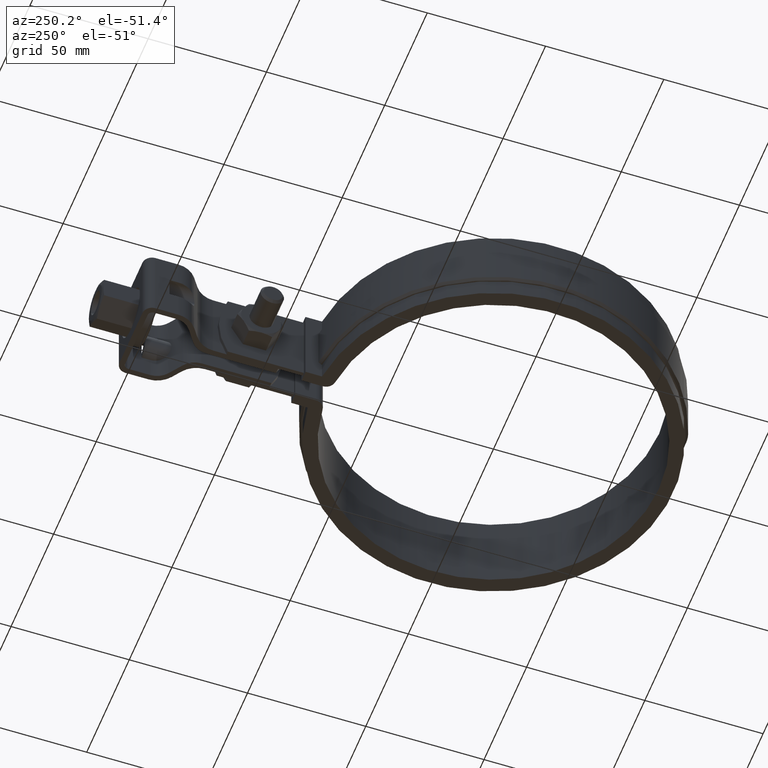
[diagram: clean part render]
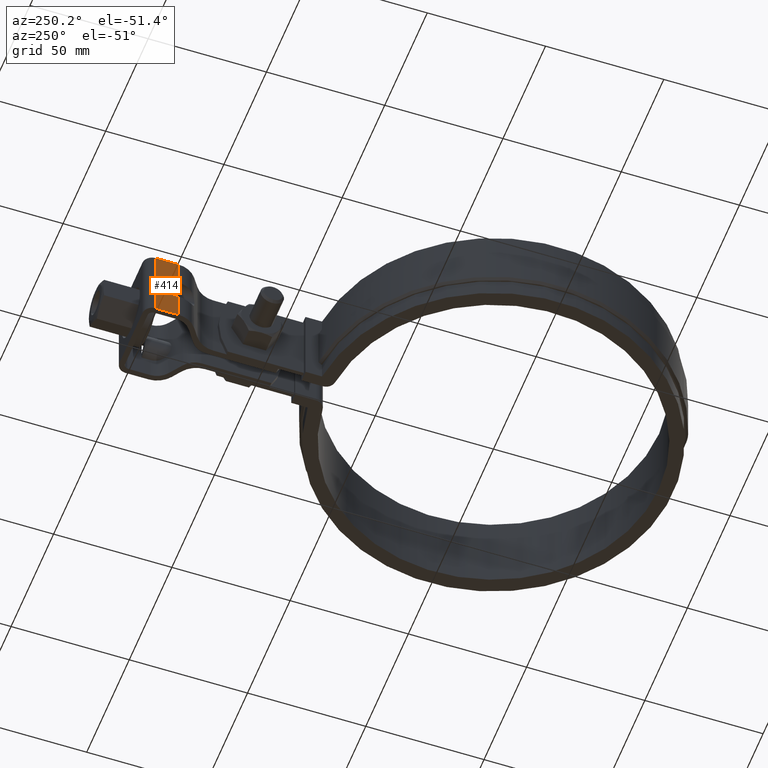
[diagram: same view with one face highlighted and labeled with its STEP entity id]
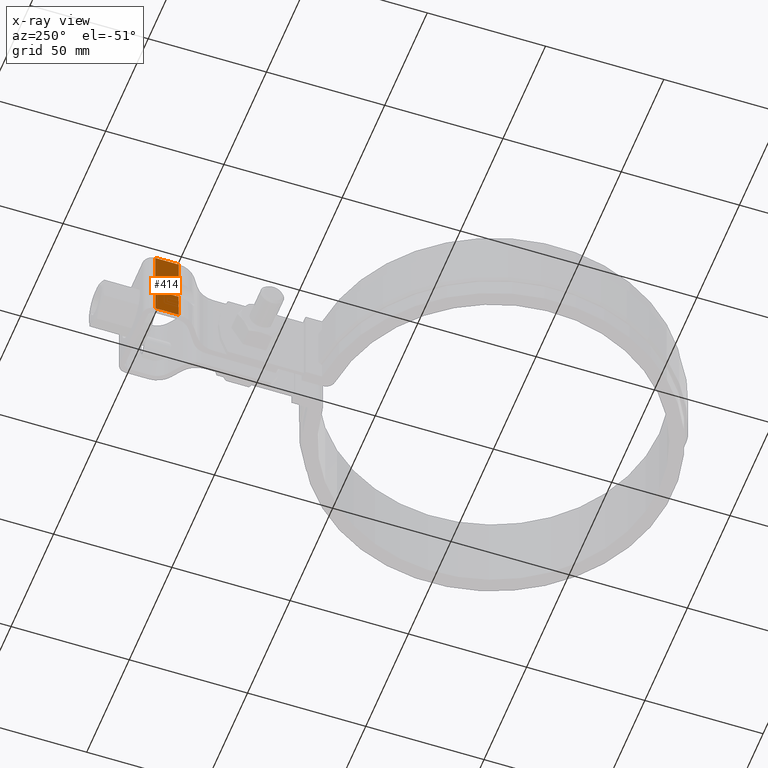
[diagram: x-ray of the same camera — body ghosted, the highlighted face saturated]
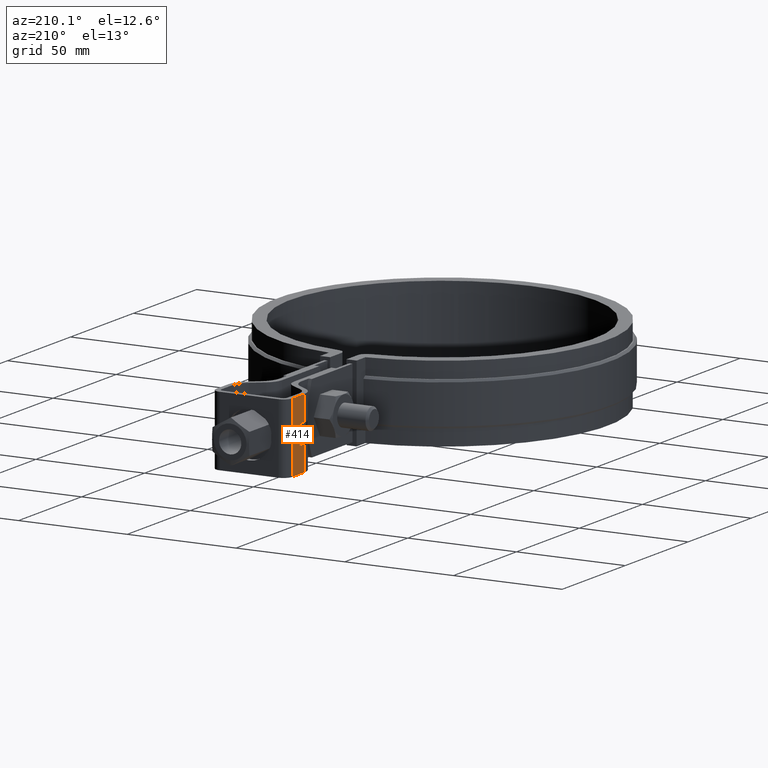
[diagram: same view with one face highlighted and labeled with its STEP entity id]
A machine part, auxiliary view. The second image highlights one B-rep face of the part: STEP entity #414.
The next image is the same camera in x-ray: the body ghosted, the highlighted face saturated — about 0% of this face is hidden behind the body in this view.
A second angle (auxiliary view) of the same face is appended — the face is thin or edge-on in the first view.
In plain terms, the highlighted planar face has unit normal (-1, 0, 0).
Its self-contained STEP definition (entity closure, byte-faithful):
#414 = ADVANCED_FACE( '', ( #700 ), #701, .T. );
#700 = FACE_OUTER_BOUND( '', #1827, .T. );
#701 = PLANE( '', #1828 );
#1827 = EDGE_LOOP( '', ( #4425, #4426, #4427, #4428, #4429, #4430, #4431, #4432 ) );
#1828 = AXIS2_PLACEMENT_3D( '', #4433, #4434, #4435 );
#4425 = ORIENTED_EDGE( '', *, *, #5327, .T. );
#4426 = ORIENTED_EDGE( '', *, *, #5328, .T. );
#4427 = ORIENTED_EDGE( '', *, *, #5329, .F. );
#4428 = ORIENTED_EDGE( '', *, *, #5330, .F. );
#4429 = ORIENTED_EDGE( '', *, *, #5297, .T. );
#4430 = ORIENTED_EDGE( '', *, *, #5318, .F. );
#4431 = ORIENTED_EDGE( '', *, *, #5331, .F. );
#4432 = ORIENTED_EDGE( '', *, *, #5240, .T. );
#4433 = CARTESIAN_POINT( '', ( -17.5000000000000, 149.297380707447, -32.0000000000000 ) );
#4434 = DIRECTION( '', ( -1.00000000000000, 6.93889390390723E-017, 0.000000000000000 ) );
#4435 = DIRECTION( '', ( 0.000000000000000, 0.000000000000000, 1.00000000000000 ) );
#5240 = EDGE_CURVE( '', #5923, #5921, #5924, .F. );
#5297 = EDGE_CURVE( '', #6024, #6025, #6026, .T. );
#5318 = EDGE_CURVE( '', #6059, #6025, #6061, .T. );
#5327 = EDGE_CURVE( '', #5921, #6072, #6074, .T. );
#5328 = EDGE_CURVE( '', #6072, #6075, #6076, .F. );
#5329 = EDGE_CURVE( '', #6077, #6075, #6078, .F. );
#5330 = EDGE_CURVE( '', #6024, #6077, #6079, .F. );
#5331 = EDGE_CURVE( '', #5923, #6059, #6080, .T. );
#5921 = VERTEX_POINT( '', #8701 );
#5923 = VERTEX_POINT( '', #8703 );
#5924 = LINE( '', #8704, #8705 );
#6024 = VERTEX_POINT( '', #8889 );
#6025 = VERTEX_POINT( '', #8890 );
#6026 = LINE( '', #8891, #8892 );
#6059 = VERTEX_POINT( '', #8950 );
#6061 = LINE( '', #8952, #8953 );
#6072 = VERTEX_POINT( '', #8968 );
#6074 = LINE( '', #8989, #8990 );
#6075 = VERTEX_POINT( '', #8991 );
#6076 = LINE( '', #8992, #8993 );
#6077 = VERTEX_POINT( '', #8994 );
#6078 = LINE( '', #8995, #8996 );
#6079 = LINE( '', #8997, #8998 );
#6080 = LINE( '', #8999, #9000 );
#8701 = CARTESIAN_POINT( '', ( -17.5000000000000, 139.503051212964, -32.0000000000000 ) );
#8703 = CARTESIAN_POINT( '', ( -17.5000000000000, 149.297380707447, -32.0000000000000 ) );
#8704 = CARTESIAN_POINT( '', ( -17.5000000000000, 149.297380707447, -32.0000000000000 ) );
#8705 = VECTOR( '', #9726, 1000.00000000000 );
#8889 = CARTESIAN_POINT( '', ( -17.5000000000000, 139.503051212964, -11.5000000000000 ) );
#8890 = CARTESIAN_POINT( '', ( -17.5000000000000, 139.503051212964, -4.16333634234434E-014 ) );
#8891 = CARTESIAN_POINT( '', ( -17.5000000000000, 139.503051212964, -32.0000000000000 ) );
#8892 = VECTOR( '', #9820, 1000.00000000000 );
#8950 = CARTESIAN_POINT( '', ( -17.5000000000000, 149.297380707447, -4.16333634234434E-014 ) );
#8952 = CARTESIAN_POINT( '', ( -17.5000000000000, 149.297380707447, -4.16333634234434E-014 ) );
#8953 = VECTOR( '', #9858, 1000.00000000000 );
#8968 = CARTESIAN_POINT( '', ( -17.5000000000000, 139.503051212964, -20.5000000000000 ) );
#8989 = CARTESIAN_POINT( '', ( -17.5000000000000, 139.503051212964, -32.0000000000000 ) );
#8990 = VECTOR( '', #9872, 1000.00000000000 );
#8991 = CARTESIAN_POINT( '', ( -17.5000000000000, 143.297380707447, -20.5000000000000 ) );
#8992 = CARTESIAN_POINT( '', ( -17.5000000000000, 128.297380707447, -20.5000000000000 ) );
#8993 = VECTOR( '', #9873, 1000.00000000000 );
#8994 = CARTESIAN_POINT( '', ( -17.5000000000000, 143.297380707447, -11.5000000000000 ) );
#8995 = CARTESIAN_POINT( '', ( -17.5000000000000, 143.297380707447, -16.0000000000000 ) );
#8996 = VECTOR( '', #9874, 1000.00000000000 );
#8997 = CARTESIAN_POINT( '', ( -17.5000000000000, 128.297380707447, -11.5000000000000 ) );
#8998 = VECTOR( '', #9875, 1000.00000000000 );
#8999 = CARTESIAN_POINT( '', ( -17.5000000000000, 149.297380707447, -32.0000000000000 ) );
#9000 = VECTOR( '', #9876, 1000.00000000000 );
#9726 = DIRECTION( '', ( 6.93889390390723E-017, 1.00000000000000, 0.000000000000000 ) );
#9820 = DIRECTION( '', ( 0.000000000000000, 0.000000000000000, 1.00000000000000 ) );
#9858 = DIRECTION( '', ( -6.93889390390723E-017, -1.00000000000000, 0.000000000000000 ) );
#9872 = DIRECTION( '', ( 0.000000000000000, 0.000000000000000, 1.00000000000000 ) );
#9873 = DIRECTION( '', ( 4.11604168809451E-032, -1.00000000000000, 1.83690953073357E-016 ) );
#9874 = DIRECTION( '', ( 1.27461203448363E-032, 1.83690953073357E-016, 1.00000000000000 ) );
#9875 = DIRECTION( '', ( 4.11604168809451E-032, -1.00000000000000, 1.83690953073357E-016 ) );
#9876 = DIRECTION( '', ( 0.000000000000000, 0.000000000000000, 1.00000000000000 ) );